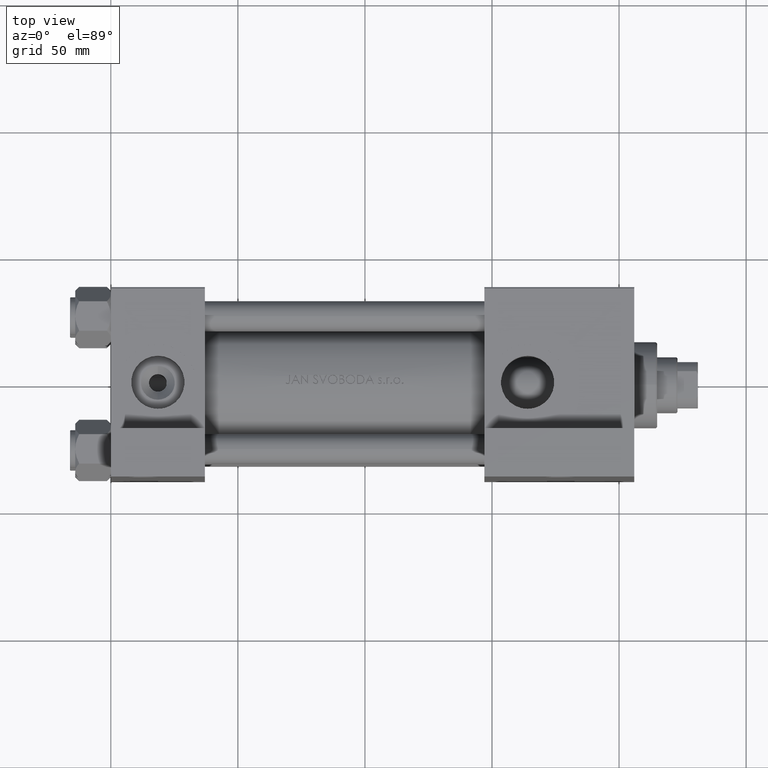
[diagram: clean part render]
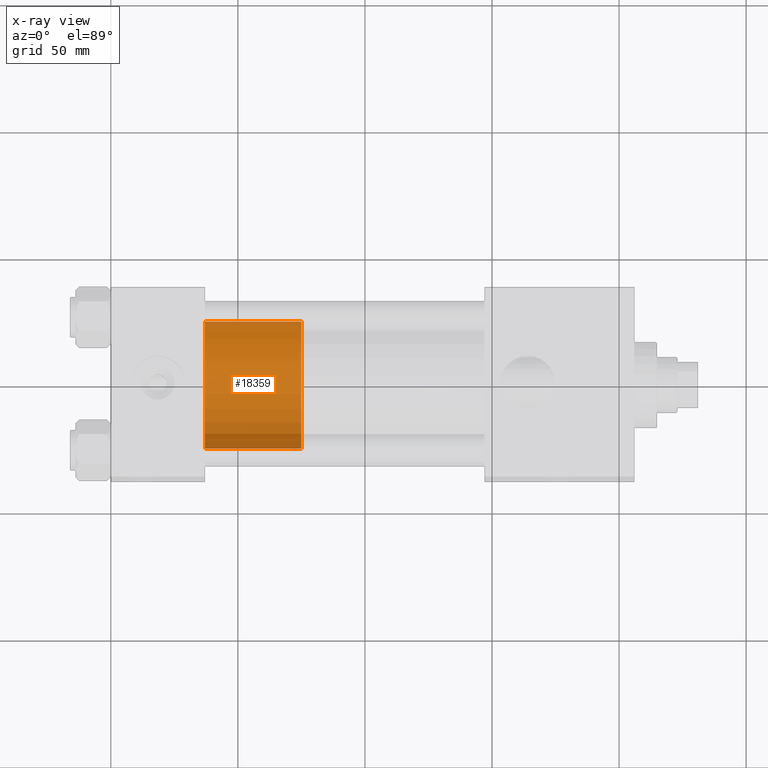
[diagram: x-ray — body ghosted, one internal face saturated and labeled with its STEP entity id]
A machine part, top view, then the same camera in x-ray: the body is ghosted and one INTERNAL B-rep face — a face not visible from any outside direction — is saturated and labeled: STEP entity #18359.
In plain terms, the highlighted cylindrical surface (partial cylindrical patch) has radius 25 mm, axis along (-1, 0, 0).
Its self-contained STEP definition (entity closure, byte-faithful):
#604 = ORIENTED_EDGE ( 'NONE', *, *, #45314, .T. ) ;
#3376 = AXIS2_PLACEMENT_3D ( 'NONE', #8478, #12215, #23686 ) ;
#4910 = CYLINDRICAL_SURFACE ( 'NONE', #10887, 25.00000000000000000 ) ;
#6931 = DIRECTION ( 'NONE',  ( -0.000000000000000000, -0.000000000000000000, -1.000000000000000000 ) ) ;
#8143 = CARTESIAN_POINT ( 'NONE',  ( 0.000000000000000000, 0.000000000000000000, 38.00000000000000000 ) ) ;
#8478 = CARTESIAN_POINT ( 'NONE',  ( 0.000000000000000000, 0.000000000000000000, 0.000000000000000000 ) ) ;
#8487 = CARTESIAN_POINT ( 'NONE',  ( 25.00000000000000000, 3.061616997868383043E-15, 38.00000000000000000 ) ) ;
#10887 = AXIS2_PLACEMENT_3D ( 'NONE', #8143, #12122, #38291 ) ;
#11345 = VERTEX_POINT ( 'NONE', #45021 ) ;
#12122 = DIRECTION ( 'NONE',  ( -0.000000000000000000, -0.000000000000000000, -1.000000000000000000 ) ) ;
#12215 = DIRECTION ( 'NONE',  ( 0.000000000000000000, 0.000000000000000000, 1.000000000000000000 ) ) ;
#14180 = ORIENTED_EDGE ( 'NONE', *, *, #33439, .F. ) ;
#18359 = ADVANCED_FACE ( 'NONE', ( #34304 ), #4910, .T. ) ;
#20950 = CIRCLE ( 'NONE', #22540, 25.00000000000000000 ) ;
#20952 = DIRECTION ( 'NONE',  ( -0.000000000000000000, -0.000000000000000000, -1.000000000000000000 ) ) ;
#21219 = EDGE_CURVE ( 'NONE', #11345, #28460, #40128, .T. ) ;
#21621 = ORIENTED_EDGE ( 'NONE', *, *, #45037, .T. ) ;
#22474 = CIRCLE ( 'NONE', #3376, 25.00000000000000000 ) ;
#22540 = AXIS2_PLACEMENT_3D ( 'NONE', #45849, #26685, #34653 ) ;
#23686 = DIRECTION ( 'NONE',  ( 1.000000000000000000, 0.000000000000000000, 0.000000000000000000 ) ) ;
#25543 = CARTESIAN_POINT ( 'NONE',  ( 25.00000000000000000, 3.061616997868383043E-15, 0.000000000000000000 ) ) ;
#26375 = LINE ( 'NONE', #37099, #28854 ) ;
#26685 = DIRECTION ( 'NONE',  ( 0.000000000000000000, 0.000000000000000000, 1.000000000000000000 ) ) ;
#28156 = VERTEX_POINT ( 'NONE', #25543 ) ;
#28269 = EDGE_LOOP ( 'NONE', ( #14180, #604, #21621, #29769 ) ) ;
#28460 = VERTEX_POINT ( 'NONE', #41153 ) ;
#28854 = VECTOR ( 'NONE', #6931, 1000.000000000000000 ) ;
#29769 = ORIENTED_EDGE ( 'NONE', *, *, #21219, .F. ) ;
#33439 = EDGE_CURVE ( 'NONE', #40010, #11345, #20950, .T. ) ;
#34304 = FACE_OUTER_BOUND ( 'NONE', #28269, .T. ) ;
#34653 = DIRECTION ( 'NONE',  ( 1.000000000000000000, 0.000000000000000000, 0.000000000000000000 ) ) ;
#37099 = CARTESIAN_POINT ( 'NONE',  ( 25.00000000000000000, 3.061616997868383043E-15, 38.00000000000000000 ) ) ;
#38291 = DIRECTION ( 'NONE',  ( -1.000000000000000000, 0.000000000000000000, 0.000000000000000000 ) ) ;
#38828 = VECTOR ( 'NONE', #20952, 1000.000000000000000 ) ;
#40010 = VERTEX_POINT ( 'NONE', #8487 ) ;
#40128 = LINE ( 'NONE', #44329, #38828 ) ;
#41153 = CARTESIAN_POINT ( 'NONE',  ( -25.00000000000000000, 0.000000000000000000, 0.000000000000000000 ) ) ;
#44329 = CARTESIAN_POINT ( 'NONE',  ( -25.00000000000000000, 0.000000000000000000, 38.00000000000000000 ) ) ;
#45021 = CARTESIAN_POINT ( 'NONE',  ( -25.00000000000000000, 0.000000000000000000, 38.00000000000000000 ) ) ;
#45037 = EDGE_CURVE ( 'NONE', #28156, #28460, #22474, .T. ) ;
#45314 = EDGE_CURVE ( 'NONE', #40010, #28156, #26375, .T. ) ;
#45849 = CARTESIAN_POINT ( 'NONE',  ( 0.000000000000000000, 0.000000000000000000, 38.00000000000000000 ) ) ;